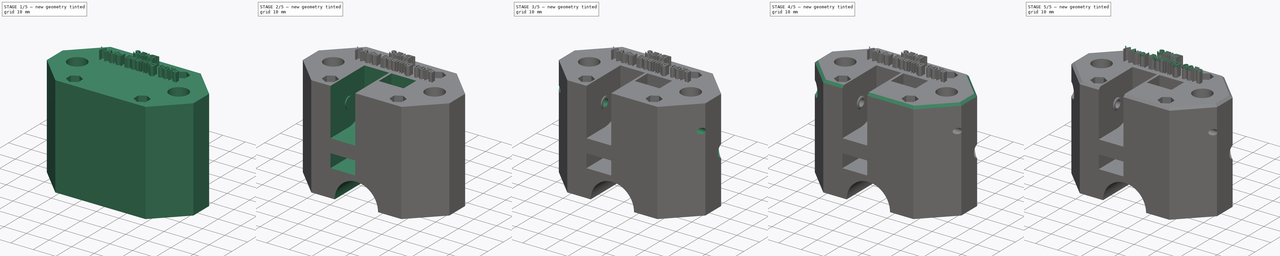
[diagram: build sequence overview — one tinted view per stage of 5, left to right]
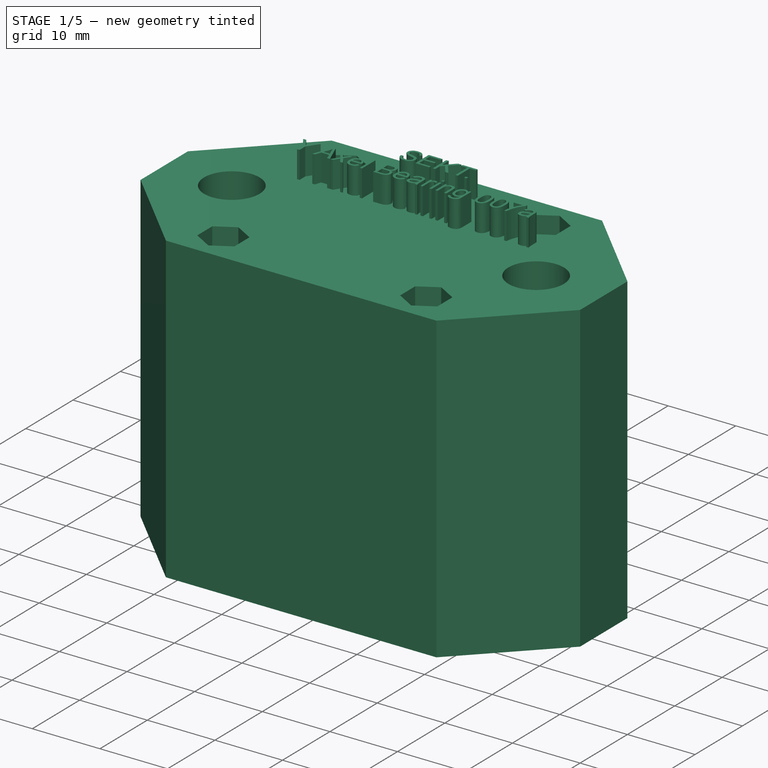
[diagram: stage 1 of 5 — iso view after this stage's code; geometry added in this stage tinted green]
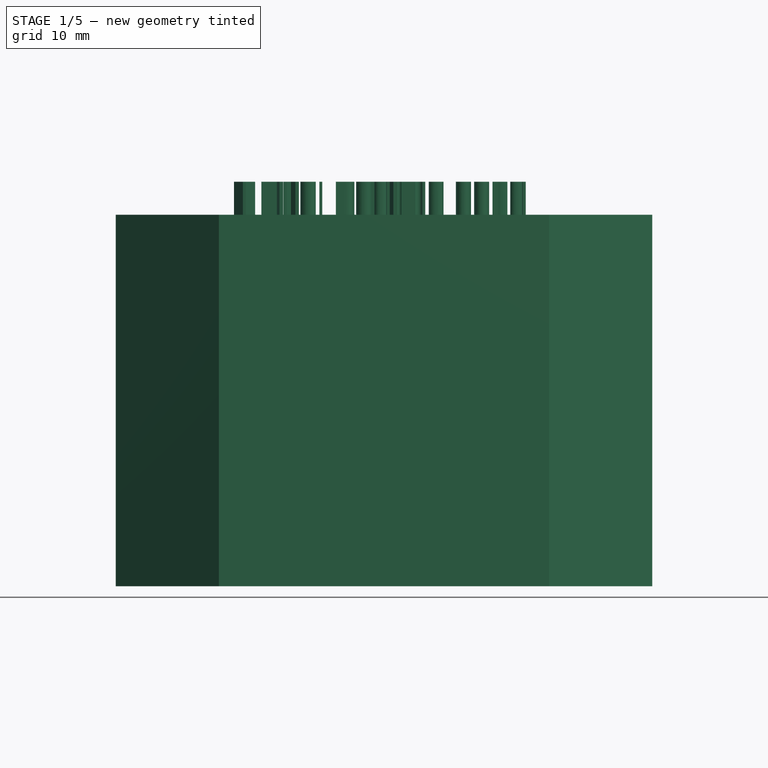
[diagram: stage 1 of 5 — front view after this stage's code; geometry added in this stage tinted green]
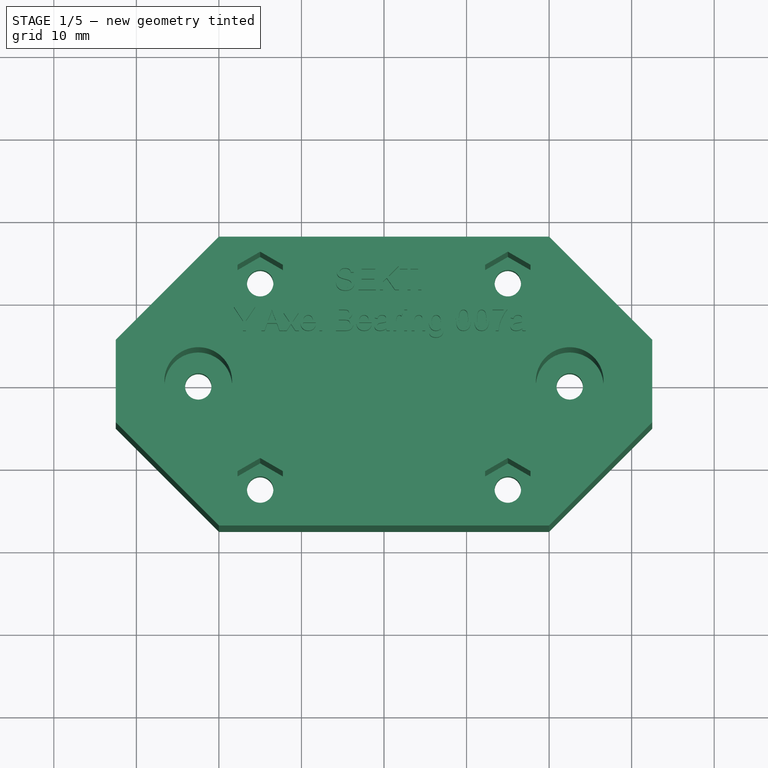
[diagram: stage 1 of 5 — top view after this stage's code; geometry added in this stage tinted green]
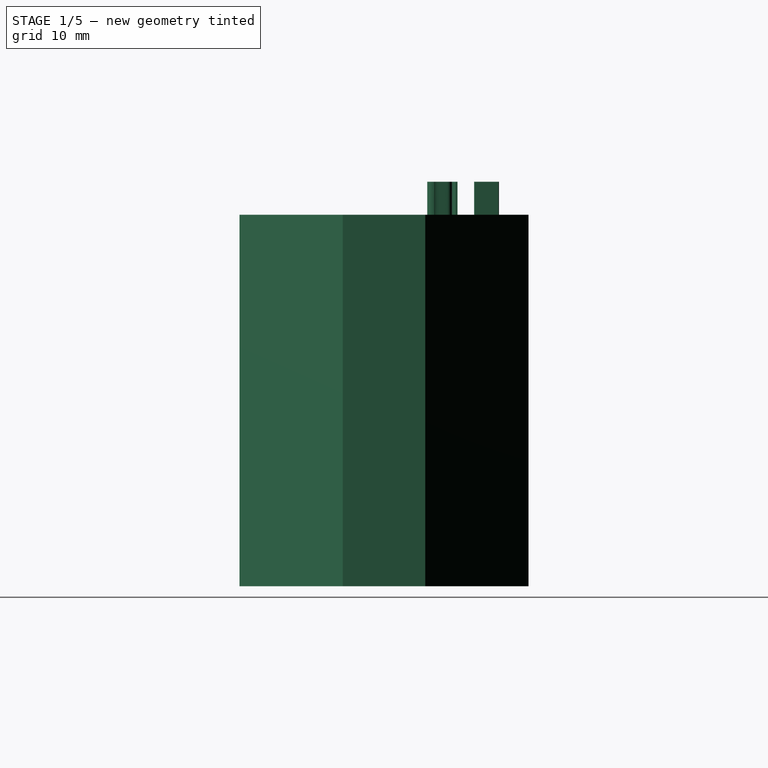
[diagram: stage 1 of 5 — right view after this stage's code; geometry added in this stage tinted green]
FCSTD DOCUMENT  (FreeCAD 0.19R20209 (Git))
Label: Y-Axel-Bearing_008a
License: Creative Commons Attribution
LicenseURL: http://creativecommons.org/licenses/by/4.0/
objects: Sketcher::SketchObject×12, PartDesign::Pocket×11, Part::Extrusion×4, PartDesign::Plane×2, PartDesign::Chamfer×2, Part::Part2DObjectPython×2, Part::Cut×2, PartDesign::Pad×1, PartDesign::Body×1
note: 51 computed .brp shape members not serialized (recipe doc carries the construction recipe); baked Part::Feature solids carry a one-line shape summary decoded from their .brp

FEATURE [Sketcher::SketchObject] Sketch
  MapMode = 5
  Support = -> [XY_Plane]
  sketch-geometry (18):
    g0: LineSegment StartX=-32.5 StartY=5 StartZ=0 EndX=-32.5 EndY=-5 EndZ=0
    g1: LineSegment StartX=-32.5 StartY=-5 StartZ=0 EndX=-20 EndY=-17.5 EndZ=0
    g2: LineSegment StartX=-20 StartY=-17.5 StartZ=0 EndX=20 EndY=-17.5 EndZ=0
    g3: LineSegment StartX=20 StartY=-17.5 StartZ=0 EndX=32.5 EndY=-5 EndZ=0
    g4: LineSegment StartX=32.5 StartY=-5 StartZ=0 EndX=32.5 EndY=5 EndZ=0
    g5: LineSegment StartX=32.5 StartY=5 StartZ=0 EndX=20 EndY=17.5 EndZ=0
    g6: LineSegment StartX=20 StartY=17.5 StartZ=0 EndX=-20 EndY=17.5 EndZ=0
    g7: LineSegment StartX=-20 StartY=17.5 StartZ=0 EndX=-32.5 EndY=5 EndZ=0
    g8: LineSegment [constr] StartX=-15 StartY=12.5 StartZ=0 EndX=15 EndY=12.5 EndZ=0
    g9: LineSegment [constr] StartX=15 StartY=12.5 StartZ=0 EndX=15 EndY=-12.5 EndZ=0
    g10: LineSegment [constr] StartX=15 StartY=-12.5 StartZ=0 EndX=-15 EndY=-12.5 EndZ=0
    g11: LineSegment [constr] StartX=-15 StartY=-12.5 StartZ=0 EndX=-15 EndY=12.5 EndZ=0
    g12: Circle CenterX=-15 CenterY=12.5 CenterZ=0 NormalX=0 NormalY=0 NormalZ=1 AngleXU=0 Radius=1.6
    g13: Circle CenterX=-15 CenterY=-12.5 CenterZ=0 NormalX=0 NormalY=0 NormalZ=1 AngleXU=0 Radius=1.6
    g14: Circle CenterX=15 CenterY=-12.5 CenterZ=0 NormalX=0 NormalY=0 NormalZ=1 AngleXU=0 Radius=1.6
    g15: Circle CenterX=15 CenterY=12.5 CenterZ=0 NormalX=0 NormalY=0 NormalZ=1 AngleXU=0 Radius=1.6
    g16: Circle CenterX=22.5 CenterY=0 CenterZ=0 NormalX=0 NormalY=0 NormalZ=1 AngleXU=0 Radius=1.6
    g17: Circle CenterX=-22.5 CenterY=0 CenterZ=0 NormalX=0 NormalY=0 NormalZ=1 AngleXU=0 Radius=1.6
  constraints (42):
    c: Coincident(g0,g1)
    c: Coincident(g1,g2)
    c: Horizontal(g2)
    c: Coincident(g2,g3)
    c: Coincident(g3,g4)
    c: Coincident(g4,g5)
    c: Coincident(g5,g6)
    c: Coincident(g6,g7)
    c: Coincident(g7,g0)
    c: Equal(g0,g4)
    c: Equal(g6,g2)
    c: Symmetric(g0,g0,g-1)
    c: Symmetric(g1,g6,g-1)
    c: Symmetric(g4,g3,g-1)
    c: Symmetric(g6,g5,g-2)
    c: Symmetric(g4,g0,g-2)
    c: Angle(g1,g7) = 1.5708
    c: DistanceY(g0,g0) = 10
    c: DistanceY(g1,g6) = 35
    c: DistanceX(g0,g4) = 65
    c: Coincident(g8,g9)
    c: Coincident(g9,g10)
    c: Coincident(g10,g11)
    c: Coincident(g11,g8)
    c: Horizontal(g8)
    c: Horizontal(g10)
    c: Vertical(g9)
    c: Vertical(g11)
    c: Symmetric(g8,g9,g-1)
    c: DistanceX(g8,g8) = 30
    c: DistanceY(g11,g11) = 25
    c: Equal(g12,g13)
    c: Equal(g13,g14)
    c: Equal(g14,g15)
    c: Diameter(g12) = 3.2
    c: Coincident(g12,g8)
    c: Coincident(g15,g8)
    c: Coincident(g14,g9)
    c: Coincident(g13,g10)
    c: Horizontal(g17,g16)
    c: DistanceX(g17,g16) = 45
    c: Symmetric(g17,g16,g-1)
FEATURE [PartDesign::Pad] Pad
  Length = 45
  Length2 = 100
  Profile = -> Sketch
  Refine = true
  Type = 0
FEATURE [Sketcher::SketchObject] Sketch001
  ExternalGeometry = -> [Pad]
  MapMode = 5
  Placement = pos=(0,0,45) rot=(0,0,1;0rad)
  Support = -> [Pad]
  sketch-geometry (30):
    g0: Circle CenterX=-22.5 CenterY=-1.8e-15 CenterZ=0 NormalX=0 NormalY=0 NormalZ=1 AngleXU=0 Radius=4.1
    g1: Circle CenterX=22.5 CenterY=-1.8e-15 CenterZ=0 NormalX=0 NormalY=0 NormalZ=1 AngleXU=0 Radius=4.1
    g2: LineSegment StartX=-12.25 StartY=10.9123 StartZ=0 EndX=-12.25 EndY=14.0877 EndZ=0
    g3: LineSegment StartX=-12.25 StartY=14.0877 StartZ=0 EndX=-15 EndY=15.6754 EndZ=0
    g4: LineSegment StartX=-15 StartY=15.6754 StartZ=0 EndX=-17.75 EndY=14.0877 EndZ=0
    g5: LineSegment StartX=-17.75 StartY=14.0877 StartZ=0 EndX=-17.75 EndY=10.9123 EndZ=0
    g6: LineSegment StartX=-17.75 StartY=10.9123 StartZ=0 EndX=-15 EndY=9.32457 EndZ=0
    g7: LineSegment StartX=-15 StartY=9.32457 StartZ=0 EndX=-12.25 EndY=10.9123 EndZ=0
    g8: Circle [constr] CenterX=-15 CenterY=12.5 CenterZ=0 NormalX=0 NormalY=0 NormalZ=1 AngleXU=0 Radius=3.17543
    g9: LineSegment StartX=17.75 StartY=10.9123 StartZ=0 EndX=17.75 EndY=14.0877 EndZ=0
    g10: LineSegment StartX=17.75 StartY=14.0877 StartZ=0 EndX=15 EndY=15.6754 EndZ=0
    g11: LineSegment StartX=15 StartY=15.6754 StartZ=0 EndX=12.25 EndY=14.0877 EndZ=0
    g12: LineSegment StartX=12.25 StartY=14.0877 StartZ=0 EndX=12.25 EndY=10.9123 EndZ=0
    g13: LineSegment StartX=12.25 StartY=10.9123 StartZ=0 EndX=15 EndY=9.32457 EndZ=0
    g14: LineSegment StartX=15 StartY=9.32457 StartZ=0 EndX=17.75 EndY=10.9123 EndZ=0
    g15: Circle [constr] CenterX=15 CenterY=12.5 CenterZ=0 NormalX=0 NormalY=0 NormalZ=1 AngleXU=0 Radius=3.17543
    g16: LineSegment StartX=-12.25 StartY=-14.0877 StartZ=0 EndX=-12.25 EndY=-10.9123 EndZ=0
    g17: LineSegment StartX=-12.25 StartY=-10.9123 StartZ=0 EndX=-15 EndY=-9.32457 EndZ=0
    g18: LineSegment StartX=-15 StartY=-9.32457 StartZ=0 EndX=-17.75 EndY=-10.9123 EndZ=0
    g19: LineSegment StartX=-17.75 StartY=-10.9123 StartZ=0 EndX=-17.75 EndY=-14.0877 EndZ=0
    g20: LineSegment StartX=-17.75 StartY=-14.0877 StartZ=0 EndX=-15 EndY=-15.6754 EndZ=0
    g21: LineSegment StartX=-15 StartY=-15.6754 StartZ=0 EndX=-12.25 EndY=-14.0877 EndZ=0
    g22: Circle [constr] CenterX=-15 CenterY=-12.5 CenterZ=0 NormalX=0 NormalY=0 NormalZ=1 AngleXU=0 Radius=3.17543
    g23: LineSegment StartX=17.75 StartY=-14.0877 StartZ=0 EndX=17.75 EndY=-10.9123 EndZ=0
    g24: LineSegment StartX=17.75 StartY=-10.9123 StartZ=0 EndX=15 EndY=-9.32457 EndZ=0
    g25: LineSegment StartX=15 StartY=-9.32457 StartZ=0 EndX=12.25 EndY=-10.9123 EndZ=0
    g26: LineSegment StartX=12.25 StartY=-10.9123 StartZ=0 EndX=12.25 EndY=-14.0877 EndZ=0
    g27: LineSegment StartX=12.25 StartY=-14.0877 StartZ=0 EndX=15 EndY=-15.6754 EndZ=0
    g28: LineSegment StartX=15 StartY=-15.6754 StartZ=0 EndX=17.75 EndY=-14.0877 EndZ=0
    g29: Circle [constr] CenterX=15 CenterY=-12.5 CenterZ=0 NormalX=0 NormalY=0 NormalZ=1 AngleXU=0 Radius=3.17543
  constraints (69):
    c: Equal(g1,g0)
    c: Diameter(g0) = 8.2
    c: Horizontal(g0,g1)
    c: DistanceX(g0,g1) = 45
    c: Symmetric(g0,g1,g-1)
    c: Coincident(g2,g3)
    c: Coincident(g3,g4)
    c: Coincident(g4,g5)
    c: Coincident(g5,g6)
    c: Coincident(g6,g7)
    c: Coincident(g7,g2)
    c: Equal(g2, g3-g7) x5
    c: PointOnObject(g2,g8)
    c: PointOnObject(g3,g8)
    c: PointOnObject(g4,g8)
    c: PointOnObject(g5,g8)
    c: PointOnObject(g6,g8)
    c: PointOnObject(g7,g8)
    c: Coincident(g9,g10)
    c: Coincident(g10,g11)
    c: Coincident(g11,g12)
    c: Coincident(g12,g13)
    c: Coincident(g13,g14)
    c: Coincident(g14,g9)
    c: Equal(g9, g10-g14) x5
    c: PointOnObject(g9,g15)
    c: PointOnObject(g10,g15)
    c: PointOnObject(g11,g15)
    c: PointOnObject(g12,g15)
    c: PointOnObject(g13,g15)
    c: PointOnObject(g14,g15)
    c: Coincident(g16,g17)
    c: Coincident(g17,g18)
    c: Coincident(g18,g19)
    c: Coincident(g19,g20)
    c: Coincident(g20,g21)
    c: Coincident(g21,g16)
    c: Equal(g16, g17-g21) x5
    c: PointOnObject(g16,g22)
    c: PointOnObject(g17,g22)
    c: PointOnObject(g18,g22)
    c: PointOnObject(g19,g22)
    c: PointOnObject(g20,g22)
    c: PointOnObject(g21,g22)
    c: Coincident(g23,g24)
    c: Coincident(g24,g25)
    c: Coincident(g25,g26)
    c: Coincident(g26,g27)
    c: Coincident(g27,g28)
    c: Coincident(g28,g23)
    c: Equal(g23, g24-g28) x5
    c: PointOnObject(g23,g29)
    c: PointOnObject(g24,g29)
    c: PointOnObject(g25,g29)
    c: PointOnObject(g26,g29)
    c: PointOnObject(g27,g29)
    c: PointOnObject(g28,g29)
    c: Equal(g29,g22)
    c: Equal(g22,g15)
    c: Equal(g15,g8)
    c: Vertical(g8,g3)
    c: Distance(g4,g2) = 5.5
    c: Vertical(g15,g10)
    c: Vertical(g22,g17)
    c: Vertical(g29,g24)
    c: Coincident(g8,g-3)
    c: Coincident(g15,g-6)
    c: Coincident(g29,g-5)
    c: Coincident(g22,g-4)
FEATURE [PartDesign::Pocket] Pocket
  BaseFeature = -> Pad
  Length = 37
  Length2 = 100
  Profile = -> Sketch001
  Refine = true
  Type = 0
FEATURE [Part::Extrusion] Extrude001
  Base = -> ShapeString
  Dir = (0,0,1)
  DirMode = 2
  FaceMakerClass = Part::FaceMakerBullseye
  LengthFwd = 5
  LengthRev = 0
  Placement = pos=(0,0,-1) rot=(0,0,1;0rad)
  Solid = true
  Symmetric = false
FEATURE [Part::Extrusion] Extrude003
  Base = -> ShapeString001
  Dir = (0,0,1)
  DirMode = 2
  FaceMakerClass = Part::FaceMakerBullseye
  LengthFwd = 5
  LengthRev = 0
  Placement = pos=(0,0,-1) rot=(0,0,1;0rad)
  Solid = true
  Symmetric = false
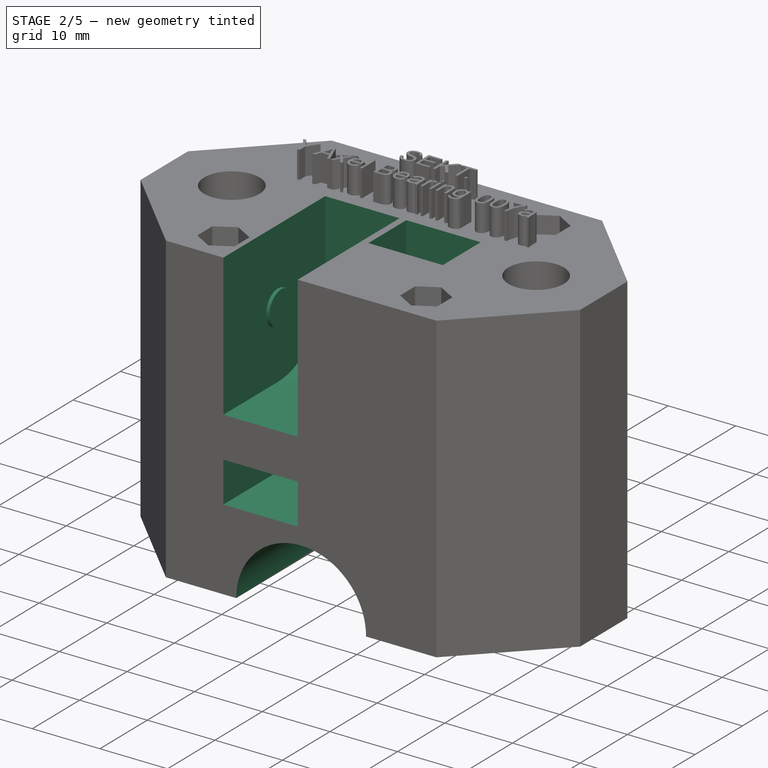
[diagram: stage 2 of 5 — iso view after this stage's code; geometry added in this stage tinted green]
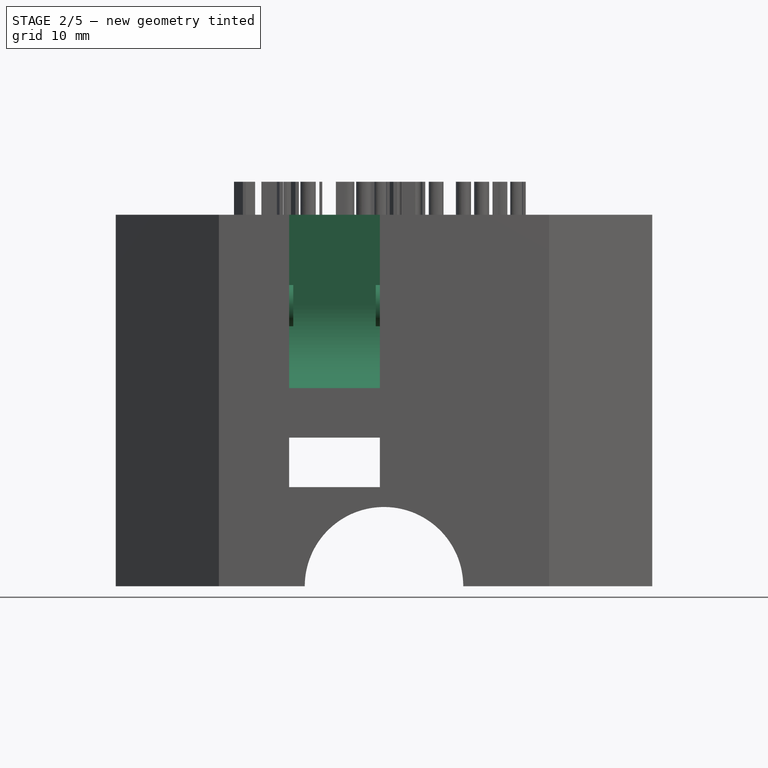
[diagram: stage 2 of 5 — front view after this stage's code; geometry added in this stage tinted green]
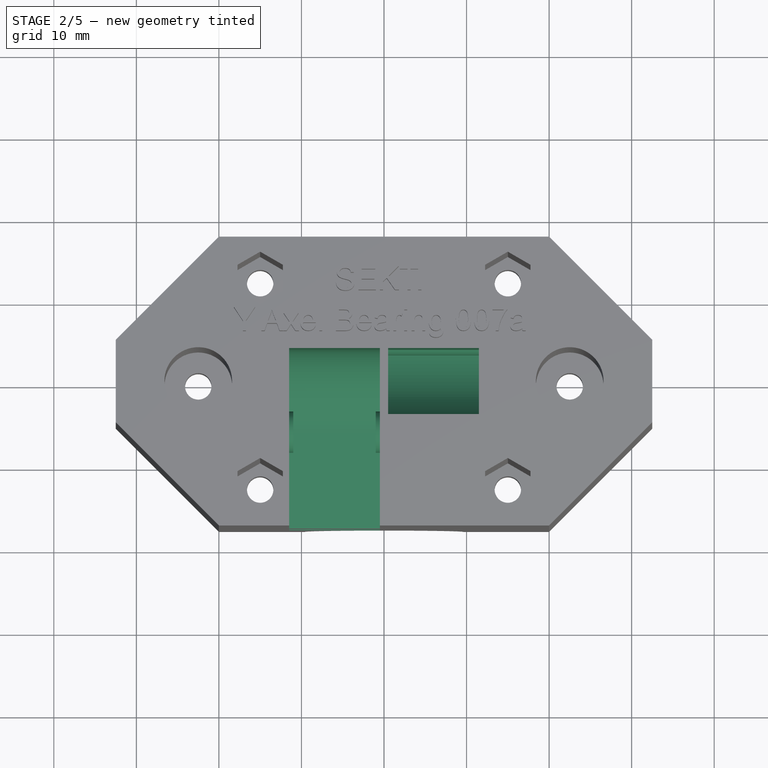
[diagram: stage 2 of 5 — top view after this stage's code; geometry added in this stage tinted green]
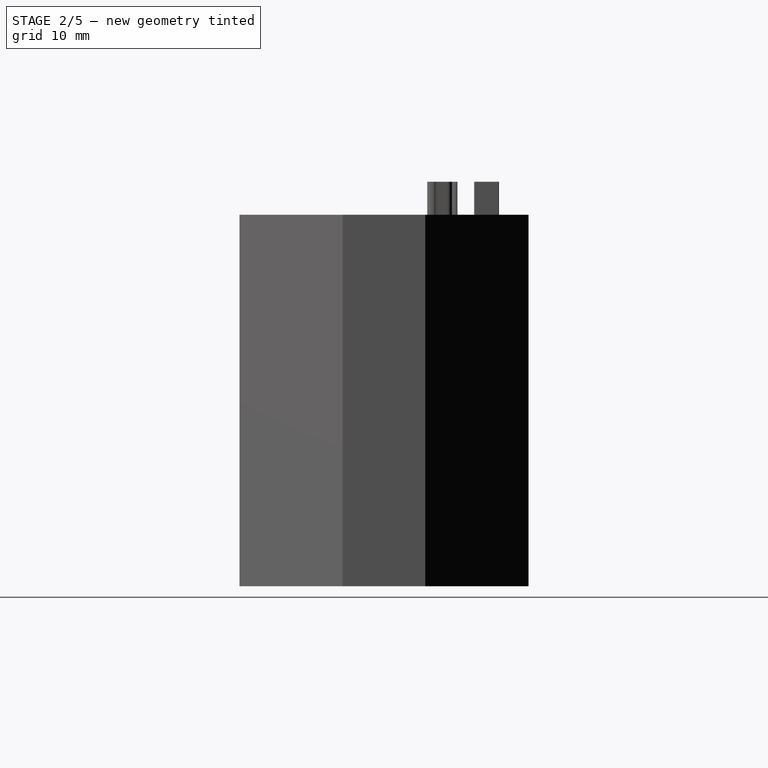
[diagram: stage 2 of 5 — right view after this stage's code; geometry added in this stage tinted green]
FEATURE [Sketcher::SketchObject] Sketch002
  MapMode = 5
  Placement = pos=(0,0,0) rot=(1,0,0;1.5708rad)
  Support = -> [XZ_Plane]
  sketch-geometry (1):
    g0: Circle CenterX=0 CenterY=0 CenterZ=0 NormalX=0 NormalY=0 NormalZ=1 AngleXU=0 Radius=9.6
  constraints (2):
    c: Diameter(g0) = 19.2
    c: Coincident(g0,g-1)
FEATURE [PartDesign::Pocket] Pocket001
  BaseFeature = -> Pocket
  Length = 5
  Length2 = 100
  Midplane = true
  Profile = -> Sketch002
  Refine = true
  Type = 1
FEATURE [PartDesign::Plane] DatumPlane
  AttachmentOffset = pos=(0,0,-6) rot=(0,0,1;0rad)
  Length = 61.8322
  MapMode = 5
  Placement = pos=(-6,1.3e-15,-1.3e-15) rot=(0.57735,0.57735,0.57735;2.0944rad)
  ResizeMode = 0
  Support = -> [YZ_Plane]
  Width = 81.8322
FEATURE [Sketcher::SketchObject] Sketch003
  ExternalGeometry = -> [Pocket001]
  MapMode = 5
  Placement = pos=(-6,1.3e-15,-1.3e-15) rot=(0.57735,0.57735,0.57735;2.0944rad)
  Support = -> [DatumPlane]
  sketch-geometry (11):
    g0: GeomPoint X=-6 Y=34 Z=0
    g1: ArcOfCircle CenterX=-6 CenterY=34 CenterZ=0 NormalX=0 NormalY=0 NormalZ=1 AngleXU=0 Radius=10 StartAngle=4.71239 EndAngle=6.28319
    g2: LineSegment StartX=-6 StartY=24 StartZ=0 EndX=-17.5 EndY=24 EndZ=0
    g3: LineSegment StartX=-17.5 StartY=24 StartZ=0 EndX=-17.5 EndY=45 EndZ=0
    g4: LineSegment StartX=-17.5 StartY=45 StartZ=0 EndX=4 EndY=45 EndZ=0
    g5: LineSegment StartX=4 StartY=45 StartZ=0 EndX=4 EndY=34 EndZ=0
    g6: LineSegment StartX=-17.5 StartY=18 StartZ=0 EndX=17.5 EndY=18 EndZ=0
    g7: LineSegment StartX=17.5 StartY=18 StartZ=0 EndX=17.5 EndY=12 EndZ=0
    g8: LineSegment StartX=17.5 StartY=12 StartZ=0 EndX=-17.5 EndY=12 EndZ=0
    g9: LineSegment StartX=-17.5 StartY=12 StartZ=0 EndX=-17.5 EndY=18 EndZ=0
    g10: Circle CenterX=-6 CenterY=34 CenterZ=0 NormalX=0 NormalY=0 NormalZ=1 AngleXU=0 Radius=2.5
  constraints (29):
    c: DistanceY(g-1,g0) = 34
    c: DistanceX(g0,g-1) = 6
    c: Angle(g1) = 1.5708
    c: Horizontal(g1,g1)
    c: Coincident(g1,g0)
    c: Diameter(g1) = 20
    c: Horizontal(g2)
    c: Coincident(g2,g3)
    c: Vertical(g3)
    c: Coincident(g3,g4)
    c: Horizontal(g4)
    c: Coincident(g4,g5)
    c: Vertical(g5)
    c: Coincident(g5,g1)
    c: Coincident(g2,g1)
    c: Coincident(g3,g-3)
    c: Coincident(g6,g7)
    c: Coincident(g7,g8)
    c: Coincident(g8,g9)
    c: Coincident(g9,g6)
    c: Horizontal(g8)
    c: Vertical(g7)
    c: Vertical(g9)
    c: Symmetric(g6,g6,g-2)
    c: DistanceY(g8,g6) = 6
    c: DistanceY(g-1,g8) = 12
    c: PointOnObject(g6,g-3)
    c: Diameter(g10) = 5
    c: Coincident(g10,g0)
FEATURE [PartDesign::Pocket] Pocket002
  BaseFeature = -> Pocket001
  Length = 11
  Length2 = 100
  Midplane = true
  Profile = -> Sketch003
  Refine = true
  Type = 0
FEATURE [Sketcher::SketchObject] Sketch004
  ExternalGeometry = -> [Pocket002]
  MapMode = 5
  Placement = pos=(-6,1.3e-15,-1.3e-15) rot=(0.57735,0.57735,0.57735;2.0944rad)
  Support = -> [DatumPlane]
  sketch-geometry (1):
    g0: Circle CenterX=-6 CenterY=34 CenterZ=0 NormalX=0 NormalY=0 NormalZ=1 AngleXU=0 Radius=4
  constraints (2):
    c: Diameter(g0) = 8
    c: Coincident(g0,g-3)
FEATURE [PartDesign::Pocket] Pocket003
  BaseFeature = -> Pocket002
  Length = 10
  Length2 = 100
  Midplane = true
  Profile = -> Sketch004
  Refine = true
  Type = 0
FEATURE [PartDesign::Plane] DatumPlane001
  AttachmentOffset = pos=(0,0,6) rot=(0,0,1;0rad)
  Length = 61.8322
  MapMode = 5
  Placement = pos=(6,-1.3e-15,1.3e-15) rot=(0.57735,0.57735,0.57735;2.0944rad)
  ResizeMode = 0
  Support = -> [YZ_Plane]
  Width = 81.8322
FEATURE [Sketcher::SketchObject] Sketch005
  ExternalGeometry = -> [Pocket003]
  MapMode = 5
  Placement = pos=(6,-1.3e-15,1.3e-15) rot=(0.57735,0.57735,0.57735;2.0944rad)
  Support = -> [DatumPlane001]
  sketch-geometry (9):
    g0: GeomPoint X=6 Y=22 Z=0
    g1: ArcOfCircle CenterX=6 CenterY=22 CenterZ=0 NormalX=0 NormalY=0 NormalZ=1 AngleXU=0 Radius=10 StartAngle=3.14159 EndAngle=4.71239
    g2: LineSegment StartX=-4 StartY=22 StartZ=0 EndX=-4 EndY=45 EndZ=0
    g3: LineSegment StartX=-4 StartY=45 StartZ=0 EndX=4 EndY=45 EndZ=0
    g4: LineSegment StartX=4 StartY=45 StartZ=0 EndX=4 EndY=32 EndZ=0
    g5: LineSegment StartX=4 StartY=32 StartZ=0 EndX=17.5 EndY=32 EndZ=0
    g6: LineSegment StartX=17.5 StartY=32 StartZ=0 EndX=17.5 EndY=12 EndZ=0
    g7: LineSegment StartX=17.5 StartY=12 StartZ=0 EndX=6 EndY=12 EndZ=0
    g8: Circle CenterX=6 CenterY=22 CenterZ=0 NormalX=0 NormalY=0 NormalZ=1 AngleXU=0 Radius=2.5
  constraints (24):
    c: DistanceY(g-1,g0) = 22
    c: DistanceX(g-1,g0) = 6
    c: Angle(g1) = 1.5708
    c: Horizontal(g1,g1)
    c: Diameter(g1) = 20
    c: Coincident(g1,g0)
    c: Vertical(g2)
    c: Coincident(g2,g3)
    c: Horizontal(g3)
    c: Coincident(g3,g4)
    c: Vertical(g4)
    c: Coincident(g4,g5)
    c: Horizontal(g5)
    c: Coincident(g5,g6)
    c: Vertical(g6)
    c: Coincident(g6,g7)
    c: Horizontal(g7)
    c: Coincident(g7,g1)
    c: Coincident(g2,g1)
    c: Coincident(g3,g-3)
    c: DistanceY(g6,g5) = 20
    c: PointOnObject(g5,g-4)
    c: Diameter(g8) = 5
    c: Coincident(g8,g0)
FEATURE [PartDesign::Pocket] Pocket004
  BaseFeature = -> Pocket003
  Length = 11
  Length2 = 100
  Midplane = true
  Profile = -> Sketch005
  Refine = true
  Type = 0
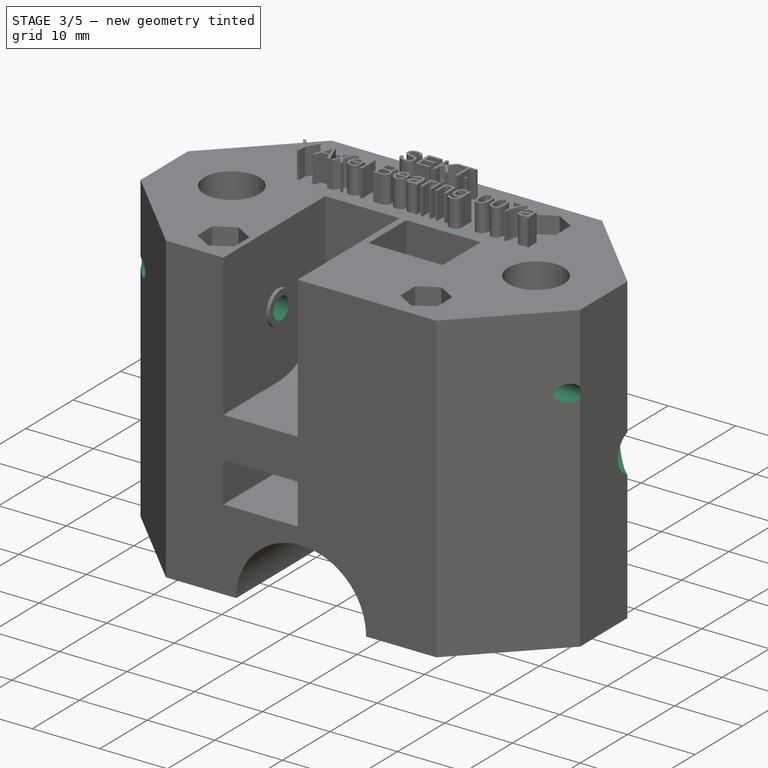
[diagram: stage 3 of 5 — iso view after this stage's code; geometry added in this stage tinted green]
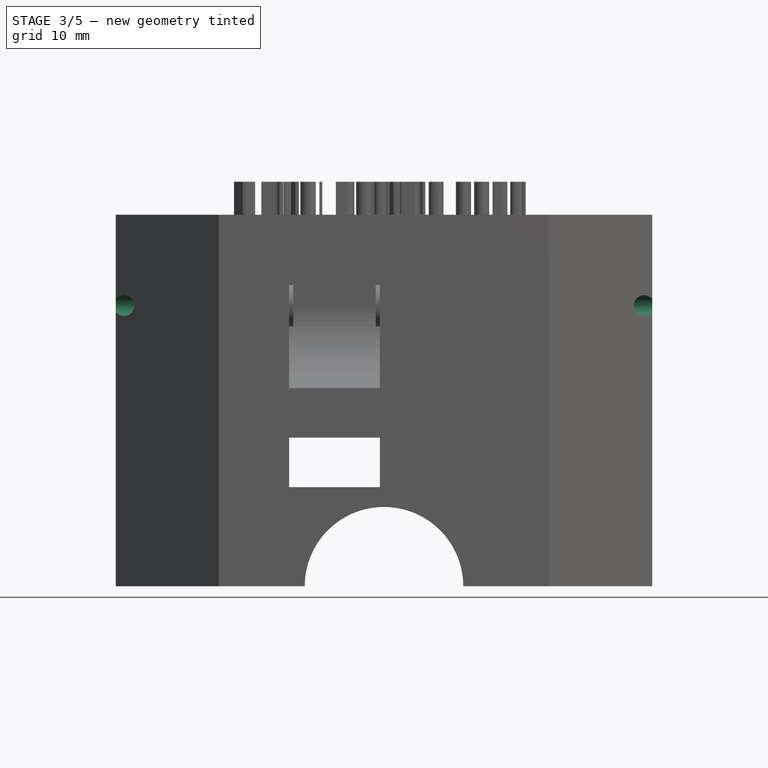
[diagram: stage 3 of 5 — front view after this stage's code; geometry added in this stage tinted green]
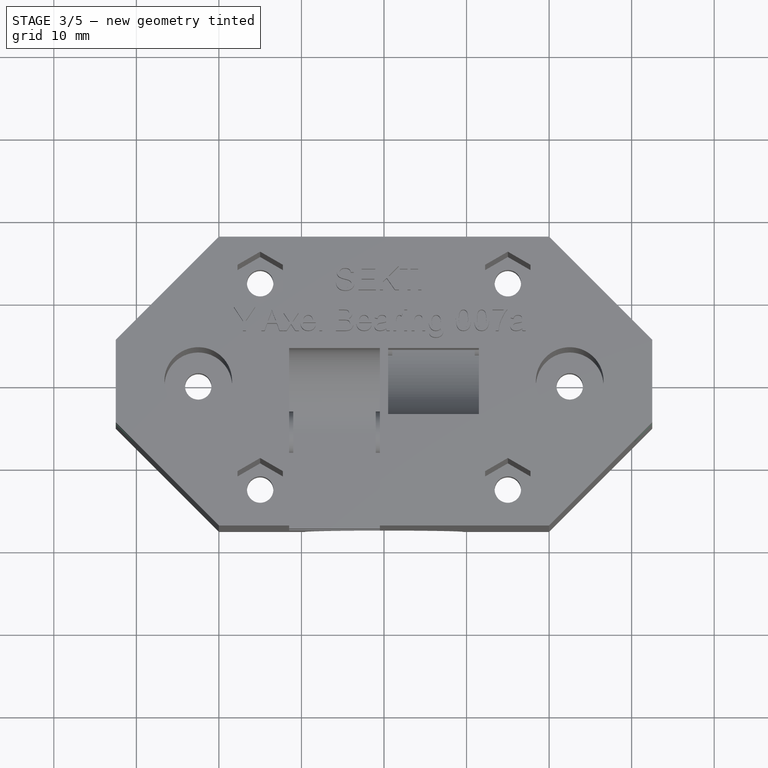
[diagram: stage 3 of 5 — top view after this stage's code; geometry added in this stage tinted green]
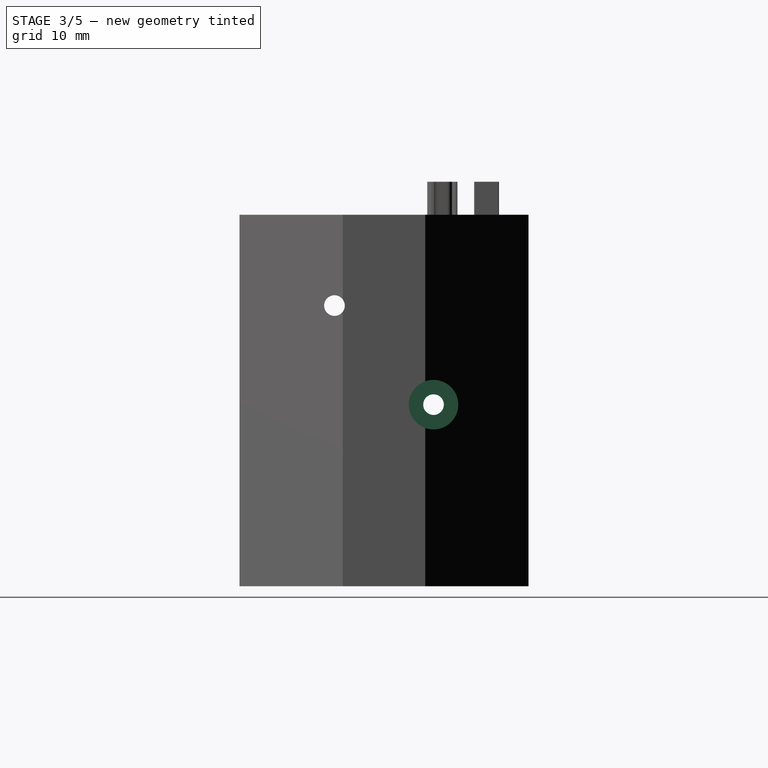
[diagram: stage 3 of 5 — right view after this stage's code; geometry added in this stage tinted green]
FEATURE [Sketcher::SketchObject] Sketch006
  ExternalGeometry = -> [Pocket004]
  MapMode = 5
  Placement = pos=(6,-1.3e-15,1.3e-15) rot=(0.57735,0.57735,0.57735;2.0944rad)
  Support = -> [DatumPlane001]
  sketch-geometry (1):
    g0: Circle CenterX=6 CenterY=22 CenterZ=0 NormalX=0 NormalY=0 NormalZ=1 AngleXU=0 Radius=4
  constraints (2):
    c: Diameter(g0) = 8
    c: Coincident(g0,g-3)
FEATURE [PartDesign::Pocket] Pocket005
  BaseFeature = -> Pocket004
  Length = 10
  Length2 = 100
  Midplane = true
  Profile = -> Sketch006
  Refine = true
  Type = 0
FEATURE [Sketcher::SketchObject] Sketch007
  ExternalGeometry = -> [Pocket005]
  MapMode = 5
  Placement = pos=(0,0,0) rot=(0.57735,0.57735,0.57735;2.0944rad)
  Support = -> [YZ_Plane]
  sketch-geometry (2):
    g0: Circle CenterX=-6 CenterY=34 CenterZ=0 NormalX=0 NormalY=0 NormalZ=1 AngleXU=0 Radius=1.25
    g1: Circle CenterX=6 CenterY=22 CenterZ=0 NormalX=0 NormalY=0 NormalZ=1 AngleXU=0 Radius=1.25
  constraints (4):
    c: Equal(g1,g0)
    c: Diameter(g0) = 2.5
    c: Coincident(g0,g-3)
    c: Coincident(g1,g-4)
FEATURE [PartDesign::Pocket] Pocket006
  BaseFeature = -> Pocket005
  Length = 5
  Length2 = 100
  Midplane = true
  Profile = -> Sketch007
  Refine = true
  Type = 1
FEATURE [Sketcher::SketchObject] Sketch008
  ExternalGeometry = -> [Pocket006]
  MapMode = 5
  Placement = pos=(0,0,0) rot=(0.57735,0.57735,0.57735;2.0944rad)
  Support = -> [YZ_Plane]
  sketch-geometry (2):
    g0: Circle CenterX=-6 CenterY=34 CenterZ=0 NormalX=0 NormalY=0 NormalZ=1 AngleXU=0 Radius=1.6
    g1: Circle CenterX=6 CenterY=22 CenterZ=0 NormalX=0 NormalY=0 NormalZ=1 AngleXU=0 Radius=1.6
  constraints (4):
    c: Equal(g1,g0)
    c: Diameter(g0) = 3.2
    c: Coincident(g0,g-3)
    c: Coincident(g1,g-4)
FEATURE [PartDesign::Pocket] Pocket007
  BaseFeature = -> Pocket006
  Length = 40
  Length2 = 100
  Midplane = true
  Profile = -> Sketch008
  Refine = true
  Type = 0
FEATURE [Sketcher::SketchObject] Sketch009
  ExternalGeometry = -> [Pocket007]
  MapMode = 5
  Placement = pos=(32.5,0,0) rot=(0.57735,0.57735,0.57735;2.0944rad)
  Support = -> [Pocket007]
  sketch-geometry (1):
    g0: Circle CenterX=6 CenterY=22 CenterZ=0 NormalX=0 NormalY=0 NormalZ=1 AngleXU=0 Radius=3
  constraints (2):
    c: Coincident(g0,g-3)
    c: Diameter(g0) = 6
FEATURE [PartDesign::Pocket] Pocket008
  BaseFeature = -> Pocket007
  Length = 6
  Length2 = 100
  Profile = -> Sketch009
  Refine = true
  Type = 0
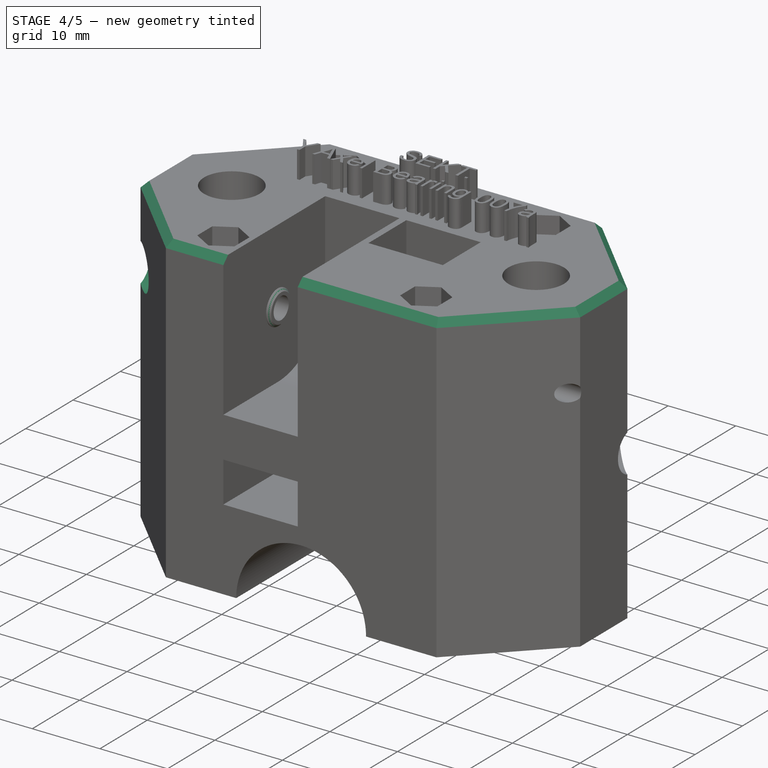
[diagram: stage 4 of 5 — iso view after this stage's code; geometry added in this stage tinted green]
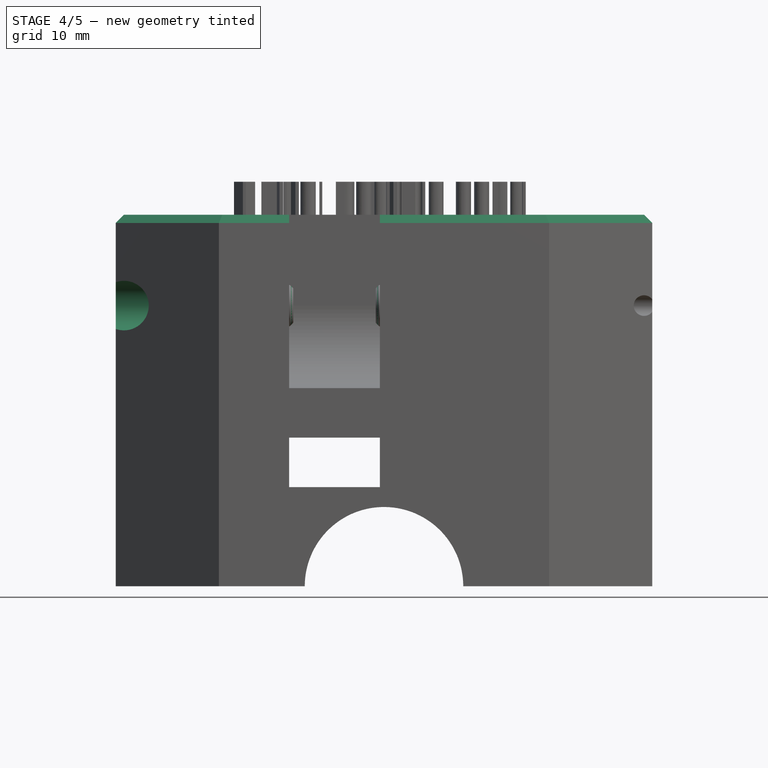
[diagram: stage 4 of 5 — front view after this stage's code; geometry added in this stage tinted green]
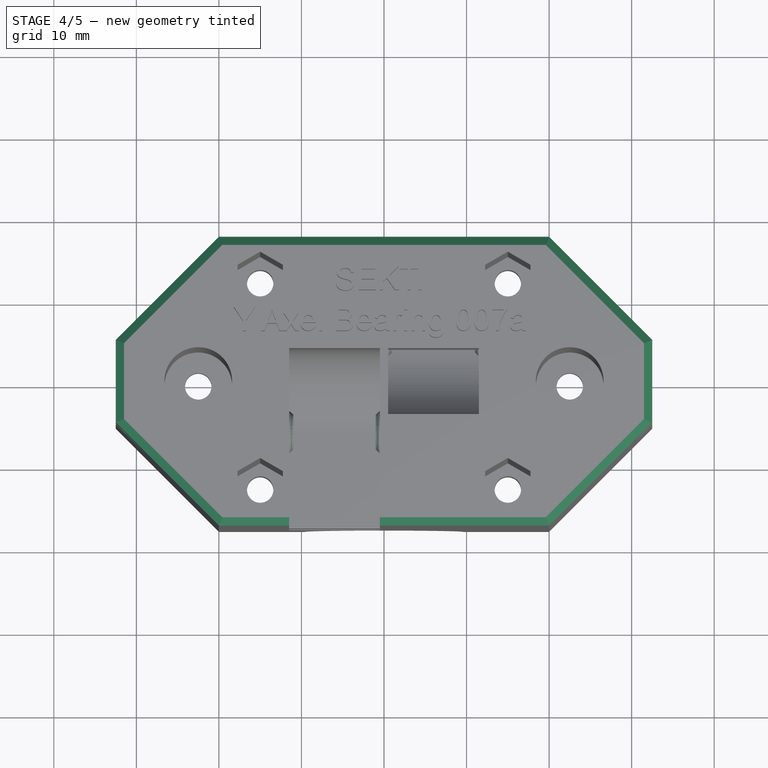
[diagram: stage 4 of 5 — top view after this stage's code; geometry added in this stage tinted green]
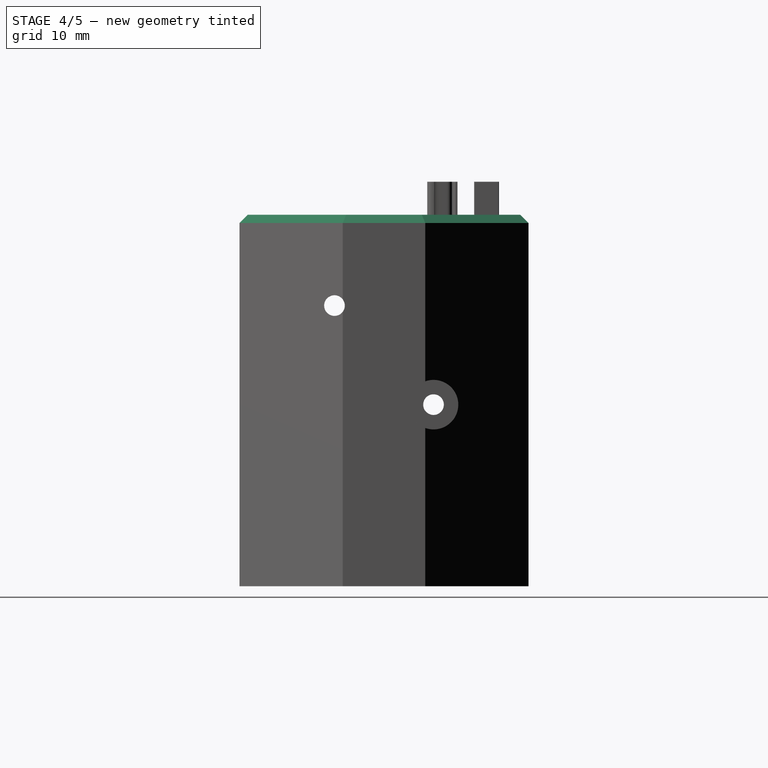
[diagram: stage 4 of 5 — right view after this stage's code; geometry added in this stage tinted green]
FEATURE [Sketcher::SketchObject] Sketch010
  ExternalGeometry = -> [Pocket008]
  MapMode = 5
  Placement = pos=(-32.5,0,0) rot=(0.57735,-0.57735,-0.57735;2.0944rad)
  Support = -> [Pocket008]
  sketch-geometry (1):
    g0: Circle CenterX=6 CenterY=34 CenterZ=0 NormalX=0 NormalY=0 NormalZ=1 AngleXU=0 Radius=3
  constraints (2):
    c: Diameter(g0) = 6
    c: Coincident(g0,g-3)
FEATURE [PartDesign::Pocket] Pocket009
  BaseFeature = -> Pocket008
  Length = 6
  Length2 = 100
  Profile = -> Sketch010
  Refine = true
  Type = 0
FEATURE [Sketcher::SketchObject] Sketch011
  MapMode = 5
  Placement = pos=(0,0,0) rot=(1,0,0;3.14159rad)
  Support = -> [Pocket009]
  sketch-geometry (2):
    g0: Circle CenterX=-22.5 CenterY=0 CenterZ=0 NormalX=0 NormalY=0 NormalZ=1 AngleXU=0 Radius=3
    g1: Circle CenterX=22.5 CenterY=0 CenterZ=0 NormalX=0 NormalY=0 NormalZ=1 AngleXU=0 Radius=3
  constraints (5):
    c: Equal(g1,g0)
    c: Diameter(g0) = 6
    c: DistanceX(g0,g1) = 45
    c: Horizontal(g1,g0)
    c: Symmetric(g0,g1,g-1)
FEATURE [PartDesign::Pocket] Pocket010
  BaseFeature = -> Pocket009
  Length = 3
  Length2 = 100
  Profile = -> Sketch011
  Refine = true
  Type = 0
FEATURE [PartDesign::Chamfer] Chamfer
  Base = -> Pocket010 [Edge27,Edge18,Edge5,Edge23,Edge24,Edge25,Edge26,Edge28,Edge30]
  BaseFeature = -> Pocket010
  Refine = true
  Size = 1
  SupportTransform = true
FEATURE [PartDesign::Chamfer] Chamfer001
  Base = -> Chamfer [Edge229,Edge228,Edge232,Edge235]
  BaseFeature = -> Chamfer
  Refine = true
  Size = 0.4
  SupportTransform = true
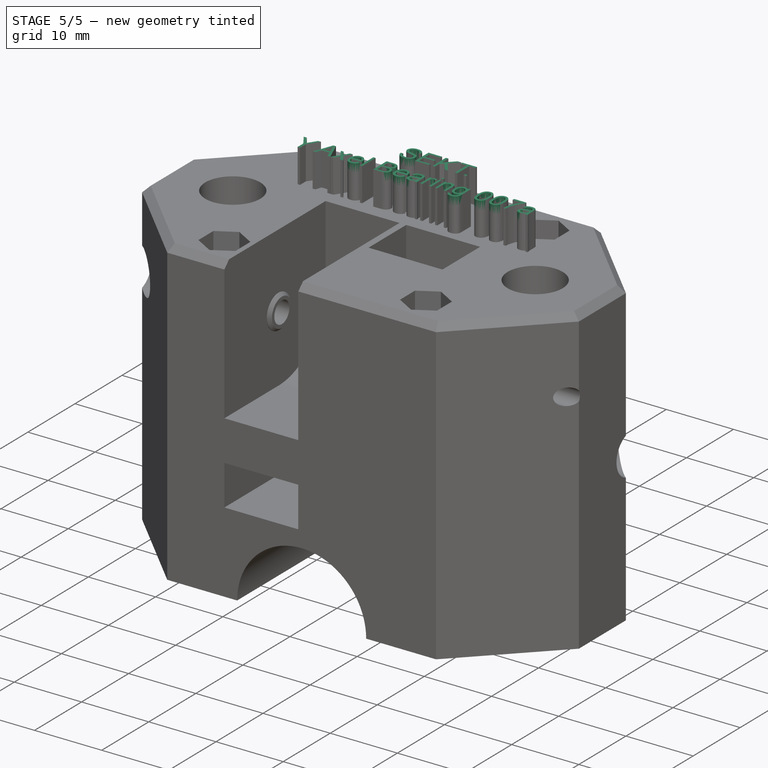
[diagram: stage 5 of 5 — iso view after this stage's code; geometry added in this stage tinted green]
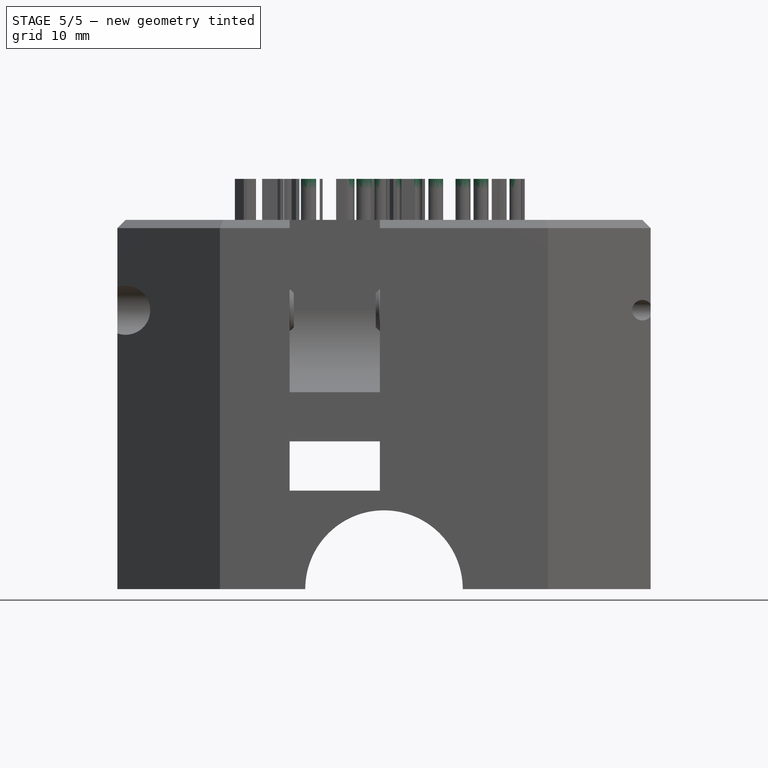
[diagram: stage 5 of 5 — front view after this stage's code; geometry added in this stage tinted green]
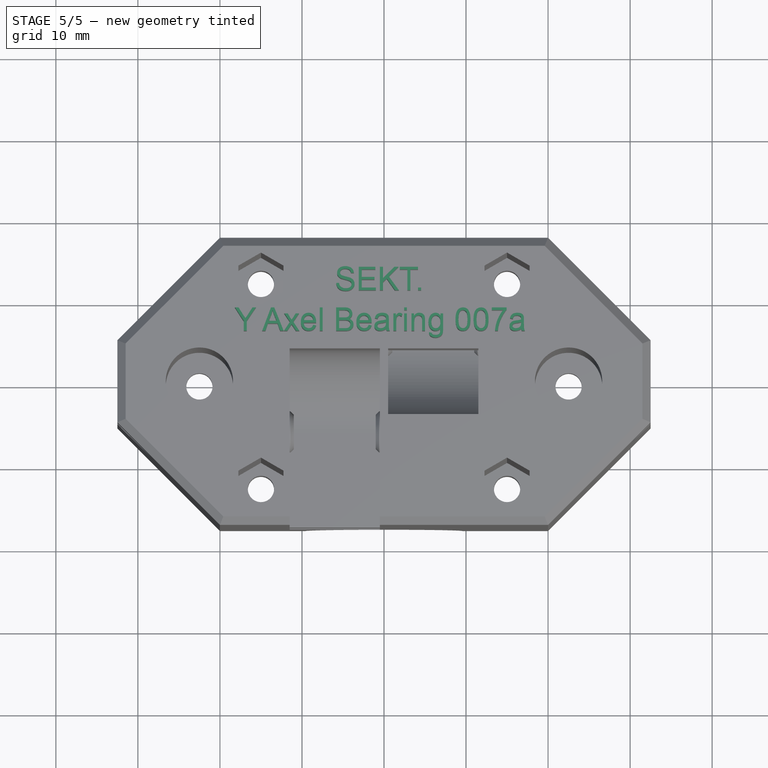
[diagram: stage 5 of 5 — top view after this stage's code; geometry added in this stage tinted green]
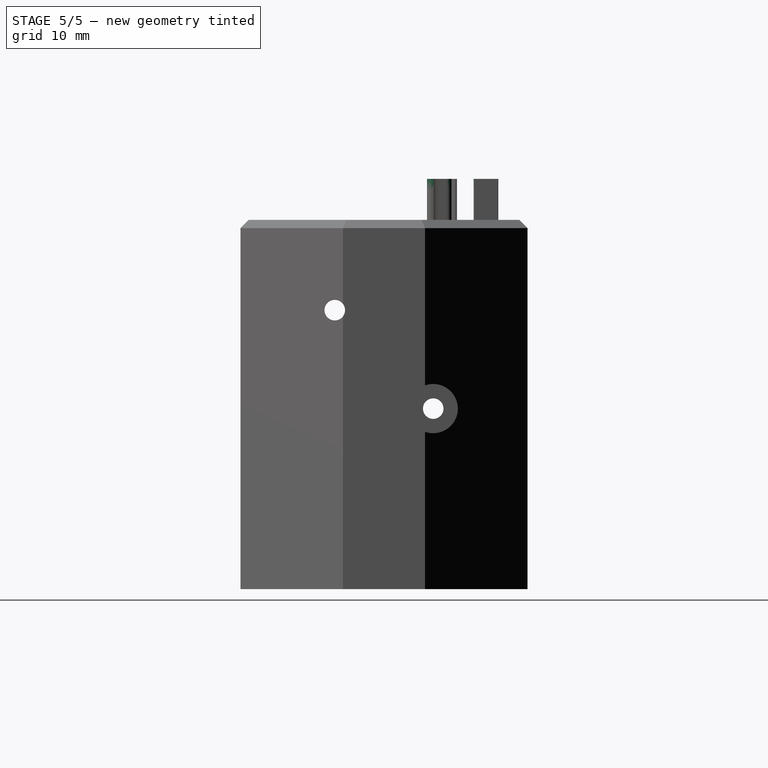
[diagram: stage 5 of 5 — right view after this stage's code; geometry added in this stage tinted green]
FEATURE [PartDesign::Body] Body
  Group = -> [Sketch,Pad,Sketch001,Pocket,Sketch002,Pocket001,DatumPlane,Sketch003,Pocket002,Sketch004,Pocket003,DatumPlane001,Sketch005,Pocket004,Sketch006,Pocket005,Sketch007,Pocket006,Sketch008,Pocket007,Sketch009,Pocket008,Sketch010,Pocket009,Sketch011,Pocket010,Chamfer,Chamfer001]
  Origin = -> Origin
  Tip = -> Chamfer001
FEATURE [Part::Part2DObjectPython] ShapeString  # Draft 2D object (typed FeaturePython)
  FontFile = <userpath>/Dokumenter/3D-Print/Font/arial.ttf
  Placement = pos=(-18.19,6.05,45) rot=(0,0,1;0rad)
  Size = 3
  String = Y Axel Bearing 007a
  Tracking = 0
FEATURE [Part::Extrusion] Extrude
  Base = -> ShapeString
  Dir = (0,0,1)
  DirMode = 2
  FaceMakerClass = Part::FaceMakerBullseye
  LengthFwd = 5
  LengthRev = 0
  Solid = true
  Symmetric = false
FEATURE [Part::Cut] Cut
  Base = -> Chamfer001
  Refine = true
  Tool = -> Extrude001
FEATURE [Part::Part2DObjectPython] ShapeString001  # Draft 2D object (typed FeaturePython)
  FontFile = <userpath>/Dokumenter/3D-Print/Font/arial.ttf
  Placement = pos=(-6,11,45) rot=(0,0,1;0rad)
  Size = 3
  String = SEKT.
  Tracking = 0
FEATURE [Part::Extrusion] Extrude002
  Base = -> ShapeString001
  Dir = (0,0,1)
  DirMode = 2
  FaceMakerClass = Part::FaceMakerBullseye
  LengthFwd = 5
  LengthRev = 0
  Solid = true
  Symmetric = false
FEATURE [Part::Cut] Cut001
  Base = -> Cut
  Refine = true
  Tool = -> Extrude003
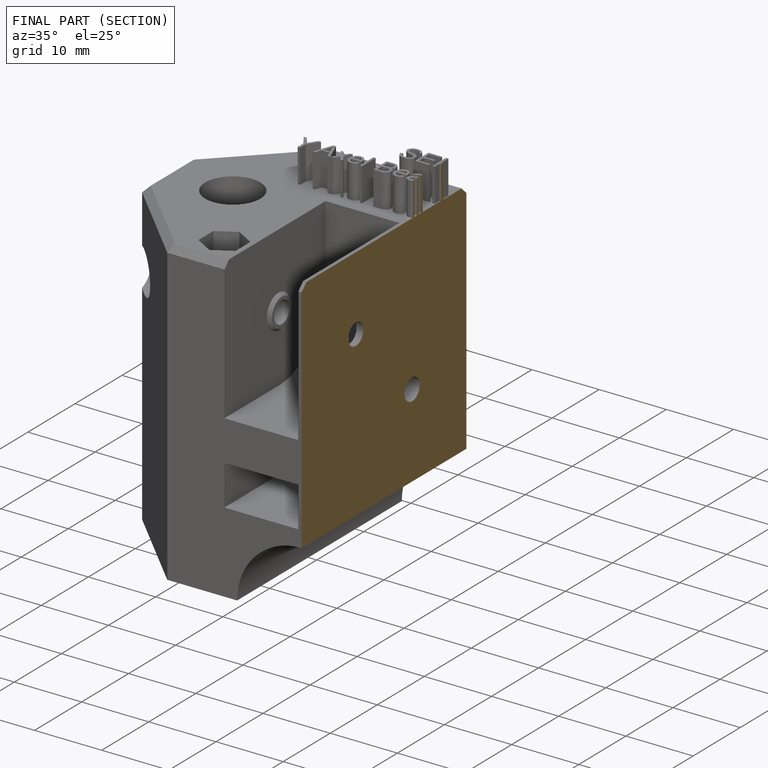
[diagram: finished part — half-section view (interior)]
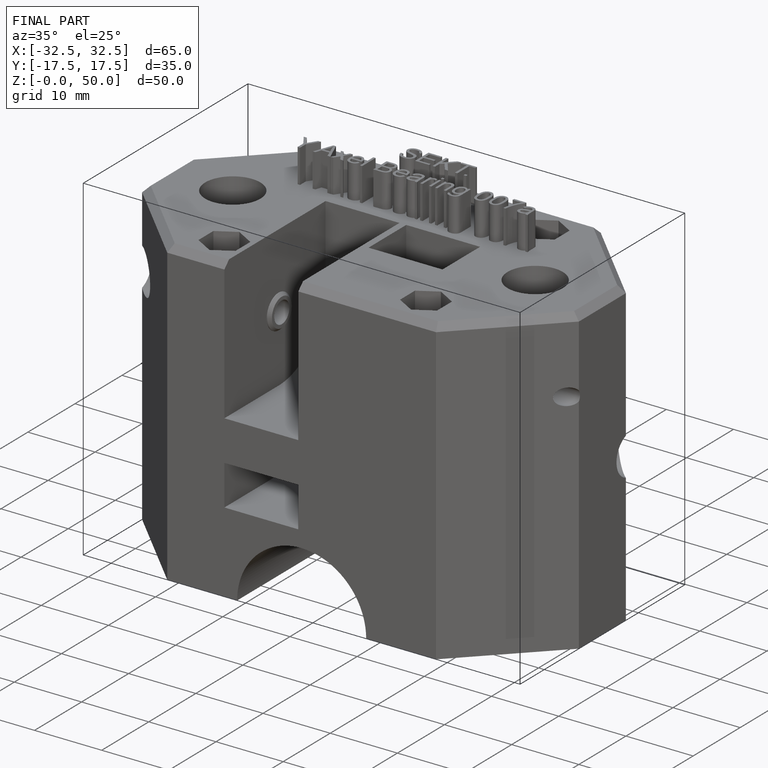
[diagram: finished part — iso view with bounding-box wireframe]
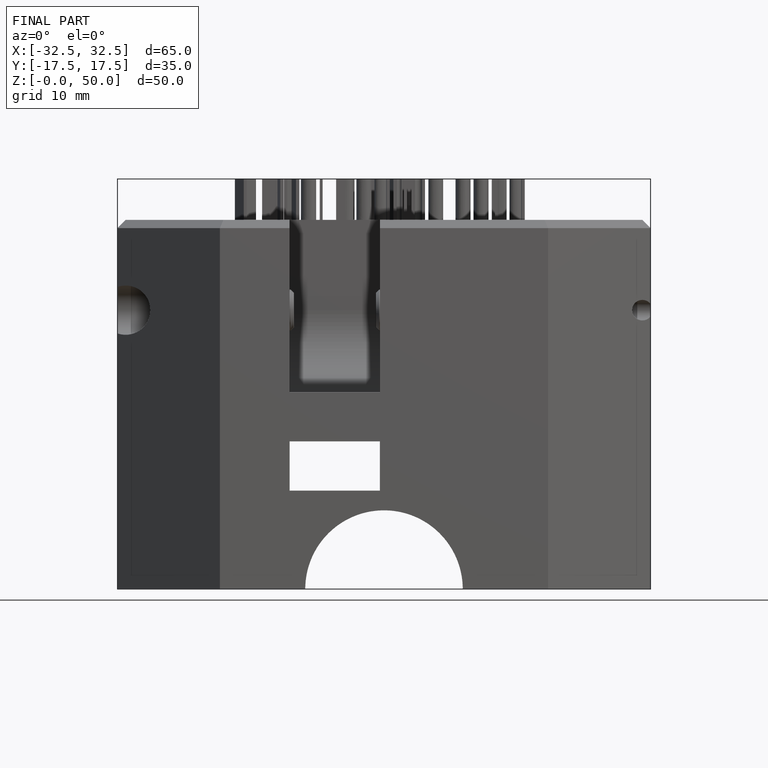
[diagram: finished part — front view with bounding-box wireframe]
